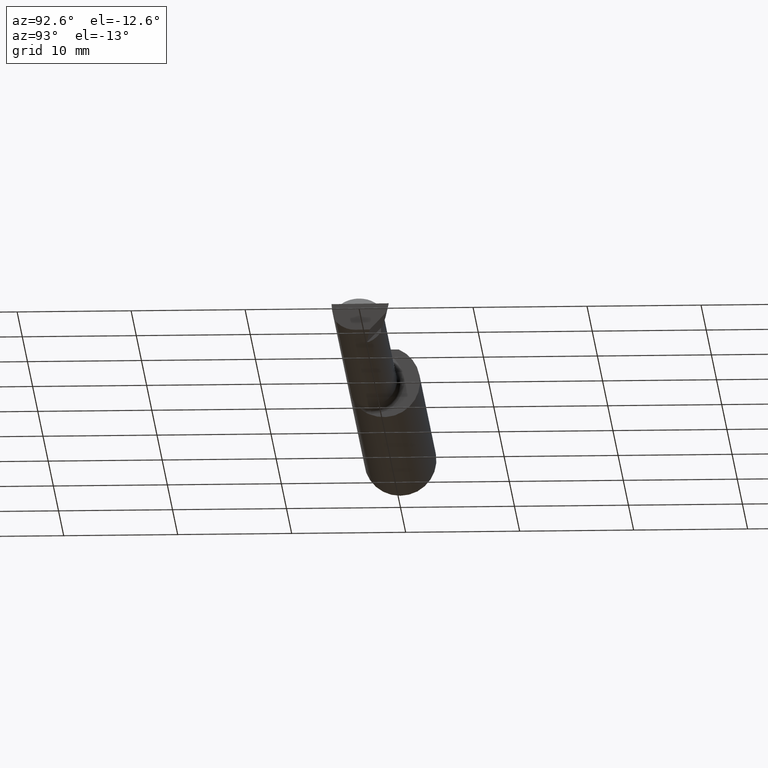
[diagram: clean part render]
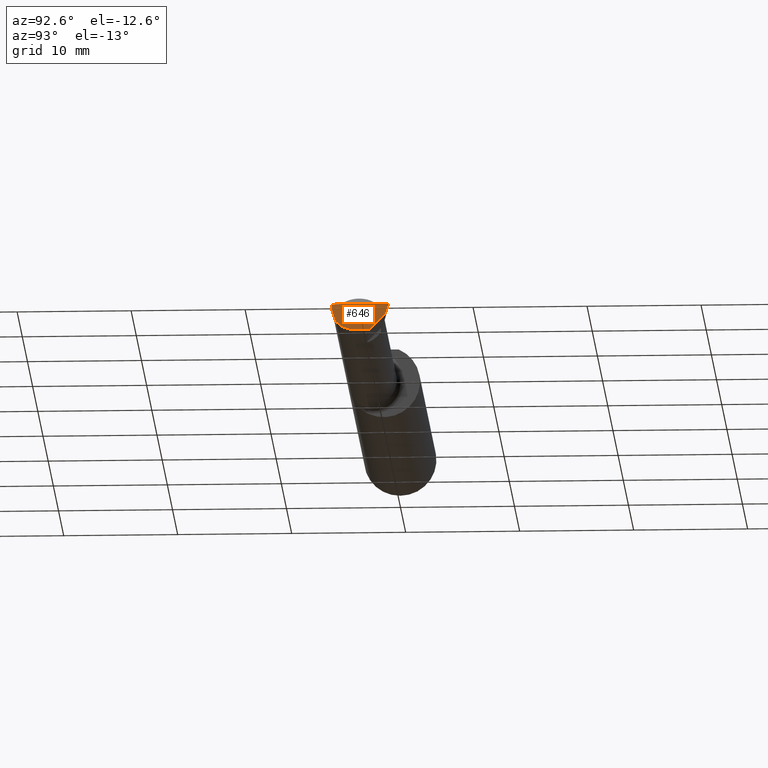
[diagram: same view with one face highlighted and labeled with its STEP entity id]
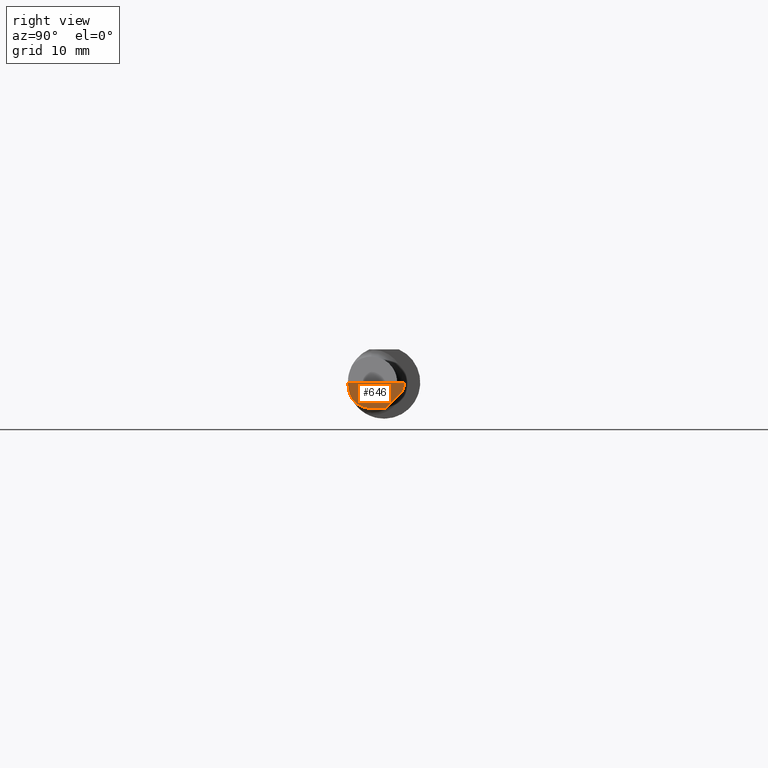
[diagram: same view with one face highlighted and labeled with its STEP entity id]
A machine part, auxiliary view. The second image highlights one B-rep face of the part: STEP entity #646.
A second angle (right view) of the same face is appended — the face is thin or edge-on in the first view.
In plain terms, the highlighted planar face has unit normal (-0.9922, 0.026, 0.1219).
Its self-contained STEP definition (entity closure, byte-faithful):
#12 = CARTESIAN_POINT ( 'NONE',  ( 2.487308770579542028, 0.006654974371325369023, -0.08914999999999999314 ) ) ;
#13 = EDGE_CURVE ( 'NONE', #358, #156, #445, .T. ) ;
#28 = EDGE_LOOP ( 'NONE', ( #331, #395, #567, #220, #241, #605 ) ) ;
#35 = DIRECTION ( 'NONE',  ( -0.1053106618241860248, -0.6976485211320166968, -0.7086580314005210823 ) ) ;
#95 = LINE ( 'NONE', #535, #127 ) ;
#107 = AXIS2_PLACEMENT_3D ( 'NONE', #638, #193, #637 ) ;
#119 = CARTESIAN_POINT ( 'NONE',  ( 2.485982323393565174, -0.04399999999999999745, -0.08914999999999999314 ) ) ;
#127 = VECTOR ( 'NONE', #35, 39.37007874015748854 ) ;
#134 = EDGE_CURVE ( 'NONE', #617, #424, #286, .T. ) ;
#146 = CARTESIAN_POINT ( 'NONE',  ( 2.494815187529301426, -0.1248500000000000304, -6.610128768667490488E-17 ) ) ;
#156 = VERTEX_POINT ( 'NONE', #293 ) ;
#157 = CARTESIAN_POINT ( 'NONE',  ( 2.491543817870046862, -0.2497785670779703315, -6.474963748791634766E-17 ) ) ;
#171 = CARTESIAN_POINT ( 'NONE',  ( 2.487716879513912627, -0.1088159090909092686, -0.06120964326573853642 ) ) ;
#193 = DIRECTION ( 'NONE',  ( -0.9922060308645472837, 0.02598182930469481594, 0.1218693434051524027 ) ) ;
#199 = DIRECTION ( 'NONE',  ( -0.1240019227989398731, -0.3022330132596650065, -0.9451342385281302771 ) ) ;
#207 =( BOUNDED_CURVE ( )  B_SPLINE_CURVE ( 3, ( #442, #723, #227, #727 ),
 .UNSPECIFIED., .F., .F. ) 
 B_SPLINE_CURVE_WITH_KNOTS ( ( 4, 4 ),
 ( 5.679229040429019548, 6.493234751459755927 ),
 .UNSPECIFIED. ) 
 CURVE ( )  GEOMETRIC_REPRESENTATION_ITEM ( )  RATIONAL_B_SPLINE_CURVE ( ( 1.000000000000000000, 0.9455409277260479195, 0.9455409277260479195, 1.000000000000000000 ) ) 
 REPRESENTATION_ITEM ( '' )  );
#209 = EDGE_CURVE ( 'NONE', #592, #358, #509, .T. ) ;
#220 = ORIENTED_EDGE ( 'NONE', *, *, #296, .F. ) ;
#227 = CARTESIAN_POINT ( 'NONE',  ( 2.485330758133041495, -0.06888227343086726628, -0.08914999999999992375 ) ) ;
#238 = CARTESIAN_POINT ( 'NONE',  ( 2.485991928762870451, -0.04363318574524892302, -0.08914999999999999314 ) ) ;
#241 = ORIENTED_EDGE ( 'NONE', *, *, #13, .F. ) ;
#286 = LINE ( 'NONE', #238, #298 ) ;
#289 = VERTEX_POINT ( 'NONE', #714 ) ;
#290 = VECTOR ( 'NONE', #334, 39.37007874015748143 ) ;
#293 = CARTESIAN_POINT ( 'NONE',  ( 2.500000000000007550, 0.07315000000001690983, 5.243440742839345051E-14 ) ) ;
#296 = EDGE_CURVE ( 'NONE', #156, #289, #351, .T. ) ;
#298 = VECTOR ( 'NONE', #629, 39.37007874015748854 ) ;
#331 = ORIENTED_EDGE ( 'NONE', *, *, #381, .T. ) ;
#334 = DIRECTION ( 'NONE',  ( 0.02617694830787468258, 0.9996573249755572599, -1.081567693920923293E-17 ) ) ;
#351 = LINE ( 'NONE', #482, #378 ) ;
#358 = VERTEX_POINT ( 'NONE', #730 ) ;
#378 = VECTOR ( 'NONE', #199, 39.37007874015748854 ) ;
#381 = EDGE_CURVE ( 'NONE', #592, #424, #207, .T. ) ;
#395 = ORIENTED_EDGE ( 'NONE', *, *, #134, .F. ) ;
#424 = VERTEX_POINT ( 'NONE', #119 ) ;
#442 = CARTESIAN_POINT ( 'NONE',  ( 2.487716879513912627, -0.1088159090909092686, -0.06120964326573853642 ) ) ;
#445 = LINE ( 'NONE', #157, #290 ) ;
#446 = FACE_OUTER_BOUND ( 'NONE', #28, .T. ) ;
#468 = PLANE ( 'NONE',  #107 ) ;
#480 = CARTESIAN_POINT ( 'NONE',  ( 2.487716879513912627, -0.1088159090909092686, -0.06120964326573853642 ) ) ;
#482 = CARTESIAN_POINT ( 'NONE',  ( 2.495889740814595026, 0.06313196164346811246, -0.03132811651357125110 ) ) ;
#490 = CARTESIAN_POINT ( 'NONE',  ( 2.492166948426750128, -0.1248500000000000026, -0.02156078579982233581 ) ) ;
#509 =( BOUNDED_CURVE ( )  B_SPLINE_CURVE ( 3, ( #480, #651, #490, #146 ),
 .UNSPECIFIED., .F., .T. ) 
 B_SPLINE_CURVE_WITH_KNOTS ( ( 4, 4 ),
 ( 0.8483525745957787301, 1.360746882514726197 ),
 .UNSPECIFIED. ) 
 CURVE ( )  GEOMETRIC_REPRESENTATION_ITEM ( )  RATIONAL_B_SPLINE_CURVE ( ( 1.000000000000000000, 0.9782404171696016393, 0.9782404171696016393, 1.000000000000000000 ) ) 
 REPRESENTATION_ITEM ( '' )  );
#535 = CARTESIAN_POINT ( 'NONE',  ( 2.491962257089441746, 0.03748279299390198938, -0.05783569115290443374 ) ) ;
#567 = ORIENTED_EDGE ( 'NONE', *, *, #649, .F. ) ;
#592 = VERTEX_POINT ( 'NONE', #171 ) ;
#605 = ORIENTED_EDGE ( 'NONE', *, *, #209, .F. ) ;
#617 = VERTEX_POINT ( 'NONE', #12 ) ;
#629 = DIRECTION ( 'NONE',  ( -0.02617694830787469992, -0.9996573249755572599, -8.492548844487195967E-17 ) ) ;
#637 = DIRECTION ( 'NONE',  ( 0.1219104985252878054, 0.0000000000000000000, 0.9925410975618670362 ) ) ;
#638 = CARTESIAN_POINT ( 'NONE',  ( 2.483804733702819956, -0.08775853831933844162, -0.09754990371710559049 ) ) ;
#646 = ADVANCED_FACE ( 'NONE', ( #446 ), #468, .F. ) ;
#649 = EDGE_CURVE ( 'NONE', #289, #617, #95, .T. ) ;
#651 = CARTESIAN_POINT ( 'NONE',  ( 2.489748215127380870, -0.1193864177600011400, -0.04241784104289498397 ) ) ;
#714 = CARTESIAN_POINT ( 'NONE',  ( 2.495801589480300287, 0.06291710817357476504, -0.03200000000000000761 ) ) ;
#723 = CARTESIAN_POINT ( 'NONE',  ( 2.485942244485980002, -0.09173194857106685418, -0.07930013314426062609 ) ) ;
#727 = CARTESIAN_POINT ( 'NONE',  ( 2.485982323393565174, -0.04399999999999999745, -0.08914999999999999314 ) ) ;
#730 = CARTESIAN_POINT ( 'NONE',  ( 2.494815187529301426, -0.1248500000000000304, -6.610128768667490488E-17 ) ) ;